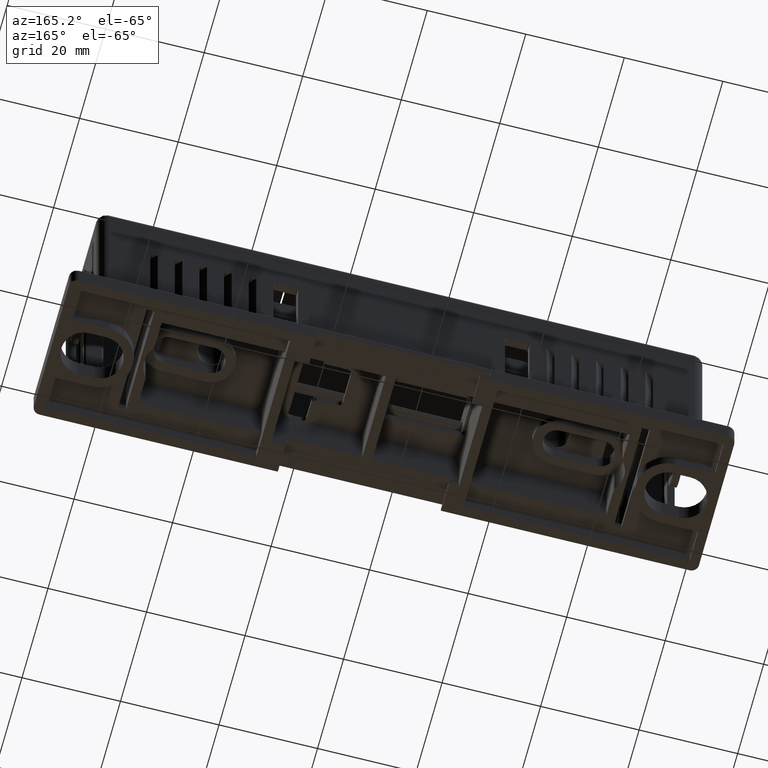
[diagram: clean part render]
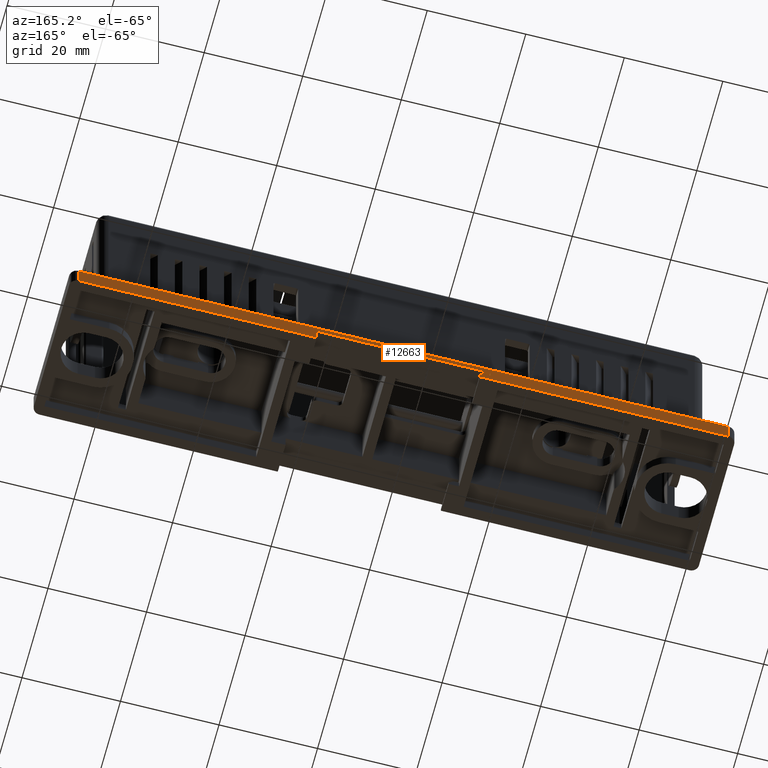
[diagram: same view with one face highlighted and labeled with its STEP entity id]
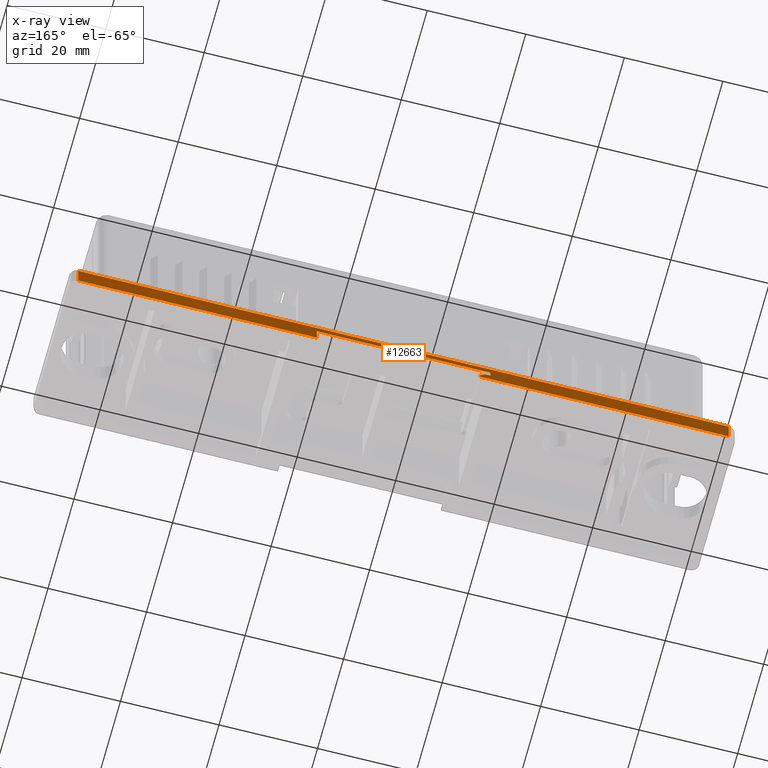
[diagram: x-ray of the same camera — body ghosted, the highlighted face saturated]
A machine part, auxiliary view. The second image highlights one B-rep face of the part: STEP entity #12663.
The next image is the same camera in x-ray: the body ghosted, the highlighted face saturated — about 0% of this face is hidden behind the body in this view.
In plain terms, the highlighted planar face has unit normal (0, 1, 0).
Its self-contained STEP definition (entity closure, byte-faithful):
#132 = CARTESIAN_POINT ( 'NONE',  ( 1.072834645669291431, 0.9842519685039370358, -0.5236220472440945573 ) ) ;
#139 = EDGE_CURVE ( 'NONE', #12770, #15525, #1303, .T. ) ;
#598 = VECTOR ( 'NONE', #13655, 39.37007874015748143 ) ;
#693 = DIRECTION ( 'NONE',  ( 1.000000000000000000, -0.000000000000000000, 0.000000000000000000 ) ) ;
#879 = DIRECTION ( 'NONE',  ( -0.000000000000000000, 0.000000000000000000, -1.000000000000000000 ) ) ;
#1229 = CARTESIAN_POINT ( 'NONE',  ( 1.078740157480315043, 0.9842519685039370358, -0.5905511811023621549 ) ) ;
#1303 = LINE ( 'NONE', #13144, #15302 ) ;
#1452 = ORIENTED_EDGE ( 'NONE', *, *, #10317, .F. ) ;
#1589 = EDGE_CURVE ( 'NONE', #15525, #13526, #7346, .T. ) ;
#1766 = VERTEX_POINT ( 'NONE', #9357 ) ;
#1788 = VECTOR ( 'NONE', #693, 39.37007874015748143 ) ;
#1868 = EDGE_CURVE ( 'NONE', #5986, #10085, #3205, .T. ) ;
#1910 = VECTOR ( 'NONE', #13311, 39.37007874015748143 ) ;
#1964 = ORIENTED_EDGE ( 'NONE', *, *, #1868, .F. ) ;
#2017 = CARTESIAN_POINT ( 'NONE',  ( 1.161417322834645827, 0.9842519685039372579, -0.5905511811023621549 ) ) ;
#2155 = CARTESIAN_POINT ( 'NONE',  ( 4.370078740157480546, 0.9842519685039370358, -0.5905511811023621549 ) ) ;
#2160 = VERTEX_POINT ( 'NONE', #4886 ) ;
#2859 = CARTESIAN_POINT ( 'NONE',  ( 2.464566929133858331, 0.9842519685039372579, -0.5905511811023621549 ) ) ;
#3096 = CARTESIAN_POINT ( 'NONE',  ( 2.464566929133858331, 0.9842519685039372579, -0.4724409448818898682 ) ) ;
#3161 = VECTOR ( 'NONE', #879, 39.37007874015748143 ) ;
#3205 = LINE ( 'NONE', #16061, #1788 ) ;
#3478 = ORIENTED_EDGE ( 'NONE', *, *, #5822, .F. ) ;
#3797 = LINE ( 'NONE', #12783, #12331 ) ;
#3860 = CARTESIAN_POINT ( 'NONE',  ( 1.771653543307086576, 0.9842519685039370358, -0.5905511811023621549 ) ) ;
#4100 = EDGE_CURVE ( 'NONE', #7327, #2160, #13555, .T. ) ;
#4118 = CARTESIAN_POINT ( 'NONE',  ( 1.122047244094488194, 0.9842519685039372579, -0.5236220472440945573 ) ) ;
#4261 = VECTOR ( 'NONE', #8475, 39.37007874015748143 ) ;
#4329 = VERTEX_POINT ( 'NONE', #9273 ) ;
#4334 = CARTESIAN_POINT ( 'NONE',  ( 1.078740157480314821, 0.9842519685039372579, -0.5236220472440945573 ) ) ;
#4728 = CARTESIAN_POINT ( 'NONE',  ( 1.771653543307086576, 0.9842519685039370358, -0.5905511811023621549 ) ) ;
#4798 = ORIENTED_EDGE ( 'NONE', *, *, #139, .T. ) ;
#4857 = ORIENTED_EDGE ( 'NONE', *, *, #13485, .T. ) ;
#4886 = CARTESIAN_POINT ( 'NONE',  ( 1.078740157480315043, 0.9842519685039370358, -0.4724409448818898127 ) ) ;
#5822 = EDGE_CURVE ( 'NONE', #4329, #8765, #7326, .T. ) ;
#5902 = DIRECTION ( 'NONE',  ( 1.000000000000000000, -0.000000000000000000, 0.000000000000000000 ) ) ;
#5986 = VERTEX_POINT ( 'NONE', #2859 ) ;
#6016 = CARTESIAN_POINT ( 'NONE',  ( -0.8267716535433072833, 0.9842519685039370358, -0.5905511811023621549 ) ) ;
#6183 = LINE ( 'NONE', #1229, #9060 ) ;
#6297 = DIRECTION ( 'NONE',  ( 0.000000000000000000, 1.000000000000000000, 0.000000000000000000 ) ) ;
#6359 = DIRECTION ( 'NONE',  ( -0.000000000000000000, 0.000000000000000000, -1.000000000000000000 ) ) ;
#6564 = ORIENTED_EDGE ( 'NONE', *, *, #10239, .T. ) ;
#6988 = ORIENTED_EDGE ( 'NONE', *, *, #15762, .F. ) ;
#7175 = CARTESIAN_POINT ( 'NONE',  ( 1.771653543307086576, 0.9842519685039370358, -0.4724409448818898127 ) ) ;
#7296 = LINE ( 'NONE', #2155, #4261 ) ;
#7326 = LINE ( 'NONE', #10004, #11389 ) ;
#7327 = VERTEX_POINT ( 'NONE', #3096 ) ;
#7346 = LINE ( 'NONE', #9539, #3161 ) ;
#7498 = EDGE_LOOP ( 'NONE', ( #11259, #6988, #6564, #3478, #11975, #1964, #4857, #13626, #10147, #1452, #4798 ) ) ;
#7886 = CARTESIAN_POINT ( 'NONE',  ( 4.370078740157480546, 0.9842519685039370358, -0.5905511811023621549 ) ) ;
#8475 = DIRECTION ( 'NONE',  ( -0.000000000000000000, 0.000000000000000000, -1.000000000000000000 ) ) ;
#8723 = CARTESIAN_POINT ( 'NONE',  ( -0.8267716535433071723, 0.9842519685039370358, -0.4133858267716535861 ) ) ;
#8757 = LINE ( 'NONE', #4728, #10491 ) ;
#8765 = VERTEX_POINT ( 'NONE', #8723 ) ;
#8792 = EDGE_CURVE ( 'NONE', #2160, #15223, #6183, .T. ) ;
#9060 = VECTOR ( 'NONE', #6359, 39.37007874015748143 ) ;
#9188 = VECTOR ( 'NONE', #10119, 39.37007874015748143 ) ;
#9273 = CARTESIAN_POINT ( 'NONE',  ( 4.370078740157479658, 0.9842519685039370358, -0.4133858267716535861 ) ) ;
#9357 = CARTESIAN_POINT ( 'NONE',  ( -0.8267716535433072833, 0.9842519685039370358, -0.5905511811023621549 ) ) ;
#9539 = CARTESIAN_POINT ( 'NONE',  ( 1.161417322834645827, 0.9842519685039370358, -0.5905511811023621549 ) ) ;
#9744 = EDGE_CURVE ( 'NONE', #4329, #10085, #7296, .T. ) ;
#9914 = DIRECTION ( 'NONE',  ( -1.000000000000000000, -0.000000000000000000, -0.000000000000000000 ) ) ;
#10004 = CARTESIAN_POINT ( 'NONE',  ( 1.771653543307086576, 0.9842519685039370358, -0.4133858267716535861 ) ) ;
#10085 = VERTEX_POINT ( 'NONE', #7886 ) ;
#10119 = DIRECTION ( 'NONE',  ( -1.000000000000000000, -0.000000000000000000, 0.000000000000000000 ) ) ;
#10147 = ORIENTED_EDGE ( 'NONE', *, *, #8792, .T. ) ;
#10239 = EDGE_CURVE ( 'NONE', #1766, #8765, #16333, .T. ) ;
#10317 = EDGE_CURVE ( 'NONE', #12770, #15223, #13899, .T. ) ;
#10491 = VECTOR ( 'NONE', #5902, 39.37007874015748143 ) ;
#11259 = ORIENTED_EDGE ( 'NONE', *, *, #1589, .T. ) ;
#11389 = VECTOR ( 'NONE', #9914, 39.37007874015748143 ) ;
#11413 = PLANE ( 'NONE',  #15053 ) ;
#11975 = ORIENTED_EDGE ( 'NONE', *, *, #9744, .T. ) ;
#12331 = VECTOR ( 'NONE', #13040, 39.37007874015748143 ) ;
#12663 = ADVANCED_FACE ( 'NONE', ( #12681 ), #11413, .T. ) ;
#12681 = FACE_OUTER_BOUND ( 'NONE', #7498, .T. ) ;
#12770 = VERTEX_POINT ( 'NONE', #4118 ) ;
#12783 = CARTESIAN_POINT ( 'NONE',  ( 2.464566929133858331, 0.9842519685039370358, -0.5905511811023621549 ) ) ;
#13040 = DIRECTION ( 'NONE',  ( 0.000000000000000000, -0.000000000000000000, 1.000000000000000000 ) ) ;
#13144 = CARTESIAN_POINT ( 'NONE',  ( 1.122047244094488194, 0.9842519685039370358, -0.5236220472440945573 ) ) ;
#13311 = DIRECTION ( 'NONE',  ( -1.000000000000000000, -0.000000000000000000, 0.000000000000000000 ) ) ;
#13485 = EDGE_CURVE ( 'NONE', #5986, #7327, #3797, .T. ) ;
#13526 = VERTEX_POINT ( 'NONE', #2017 ) ;
#13555 = LINE ( 'NONE', #7175, #1910 ) ;
#13626 = ORIENTED_EDGE ( 'NONE', *, *, #4100, .T. ) ;
#13655 = DIRECTION ( 'NONE',  ( 0.000000000000000000, -0.000000000000000000, 1.000000000000000000 ) ) ;
#13899 = LINE ( 'NONE', #132, #9188 ) ;
#14243 = DIRECTION ( 'NONE',  ( 0.7071067811865479058, -0.000000000000000000, -0.7071067811865469066 ) ) ;
#15053 = AXIS2_PLACEMENT_3D ( 'NONE', #3860, #6297, #15278 ) ;
#15223 = VERTEX_POINT ( 'NONE', #4334 ) ;
#15278 = DIRECTION ( 'NONE',  ( 0.000000000000000000, -0.000000000000000000, 1.000000000000000000 ) ) ;
#15302 = VECTOR ( 'NONE', #14243, 39.37007874015748854 ) ;
#15415 = CARTESIAN_POINT ( 'NONE',  ( 1.161417322834645827, 0.9842519685039372579, -0.5629921259842519676 ) ) ;
#15525 = VERTEX_POINT ( 'NONE', #15415 ) ;
#15762 = EDGE_CURVE ( 'NONE', #1766, #13526, #8757, .T. ) ;
#16061 = CARTESIAN_POINT ( 'NONE',  ( 1.771653543307086576, 0.9842519685039370358, -0.5905511811023621549 ) ) ;
#16333 = LINE ( 'NONE', #6016, #598 ) ;